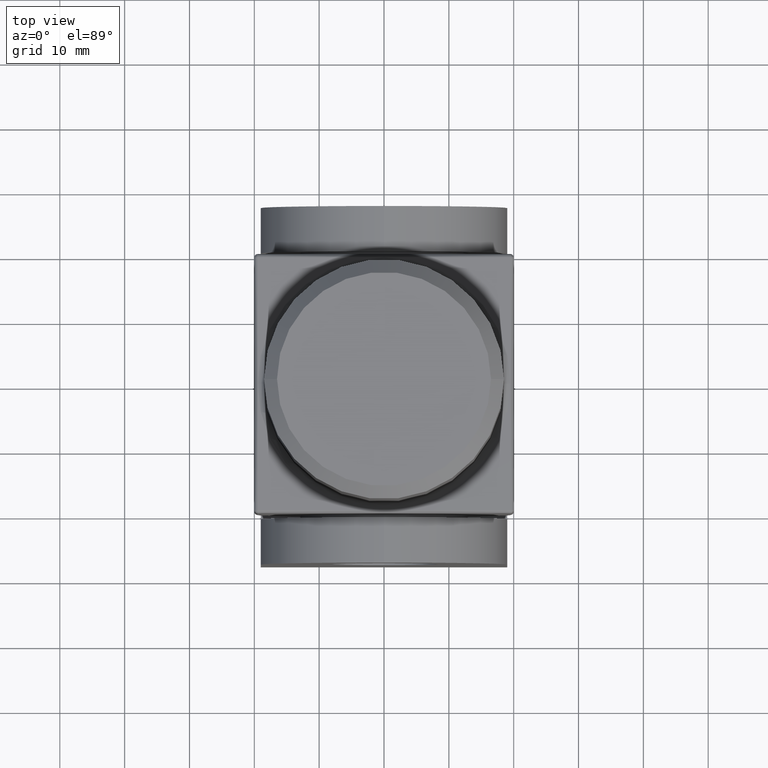
[diagram: clean part render]
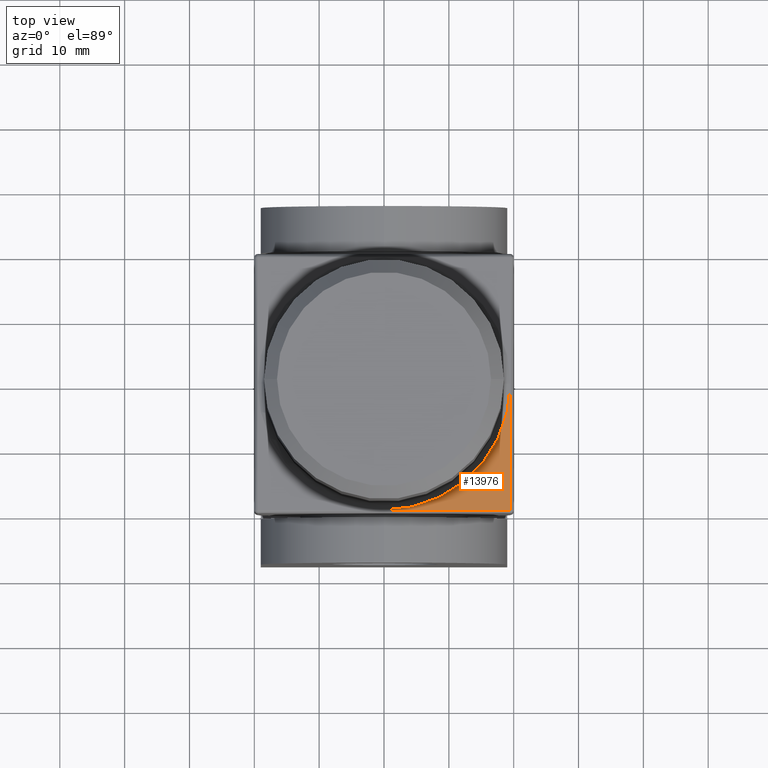
[diagram: same view with one face highlighted and labeled with its STEP entity id]
A machine part, top view. The second image highlights one B-rep face of the part: STEP entity #13976.
In plain terms, the highlighted planar face has unit normal (0, 0, -1).
Its self-contained STEP definition (entity closure, byte-faithful):
#1379 = AXIS2_PLACEMENT_3D ( 'NONE', #9141, #9021, #10688 ) ;
#1528 = VERTEX_POINT ( 'NONE', #4518 ) ;
#1865 = EDGE_LOOP ( 'NONE', ( #2029, #9481, #2271 ) ) ;
#2029 = ORIENTED_EDGE ( 'NONE', *, *, #16986, .T. ) ;
#2271 = ORIENTED_EDGE ( 'NONE', *, *, #15803, .T. ) ;
#2376 = DIRECTION ( 'NONE',  ( 1.000000000000000000, -0.000000000000000000, 0.000000000000000000 ) ) ;
#3251 = CARTESIAN_POINT ( 'NONE',  ( 19.50000000000000000, 0.000000000000000000, 0.000000000000000000 ) ) ;
#3306 = VERTEX_POINT ( 'NONE', #5562 ) ;
#4197 = AXIS2_PLACEMENT_3D ( 'NONE', #6772, #6644, #9685 ) ;
#4426 = VECTOR ( 'NONE', #11251, 1000.000000000000000 ) ;
#4518 = CARTESIAN_POINT ( 'NONE',  ( 0.000000000000000000, -19.50000000000000000, 0.000000000000000000 ) ) ;
#5562 = CARTESIAN_POINT ( 'NONE',  ( 19.50000000000000000, -19.50000000000000000, 0.000000000000000000 ) ) ;
#6644 = DIRECTION ( 'NONE',  ( 0.000000000000000000, 0.000000000000000000, -1.000000000000000000 ) ) ;
#6772 = CARTESIAN_POINT ( 'NONE',  ( -20.00000000000000000, 20.00000000000000000, 0.000000000000000000 ) ) ;
#8028 = CIRCLE ( 'NONE', #1379, 19.50000000000000000 ) ;
#9021 = DIRECTION ( 'NONE',  ( 0.000000000000000000, 0.000000000000000000, -1.000000000000000000 ) ) ;
#9141 = CARTESIAN_POINT ( 'NONE',  ( 0.000000000000000000, 0.000000000000000000, 0.000000000000000000 ) ) ;
#9481 = ORIENTED_EDGE ( 'NONE', *, *, #12535, .T. ) ;
#9685 = DIRECTION ( 'NONE',  ( -1.000000000000000000, 0.000000000000000000, -0.000000000000000000 ) ) ;
#10688 = DIRECTION ( 'NONE',  ( -1.000000000000000000, 0.000000000000000000, 0.000000000000000000 ) ) ;
#10826 = FACE_OUTER_BOUND ( 'NONE', #1865, .T. ) ;
#11251 = DIRECTION ( 'NONE',  ( -0.000000000000000000, 1.000000000000000000, -0.000000000000000000 ) ) ;
#12535 = EDGE_CURVE ( 'NONE', #1528, #3306, #15837, .T. ) ;
#13626 = VERTEX_POINT ( 'NONE', #3251 ) ;
#13976 = ADVANCED_FACE ( 'NONE', ( #10826 ), #13999, .F. ) ;
#13999 = PLANE ( 'NONE',  #4197 ) ;
#14162 = CARTESIAN_POINT ( 'NONE',  ( 19.50000000000000000, 20.00000000000000000, 0.000000000000000000 ) ) ;
#15803 = EDGE_CURVE ( 'NONE', #3306, #13626, #17117, .T. ) ;
#15837 = LINE ( 'NONE', #18460, #16515 ) ;
#16515 = VECTOR ( 'NONE', #2376, 1000.000000000000000 ) ;
#16986 = EDGE_CURVE ( 'NONE', #13626, #1528, #8028, .T. ) ;
#17117 = LINE ( 'NONE', #14162, #4426 ) ;
#18460 = CARTESIAN_POINT ( 'NONE',  ( -20.00000000000000000, -19.50000000000000000, 0.000000000000000000 ) ) ;